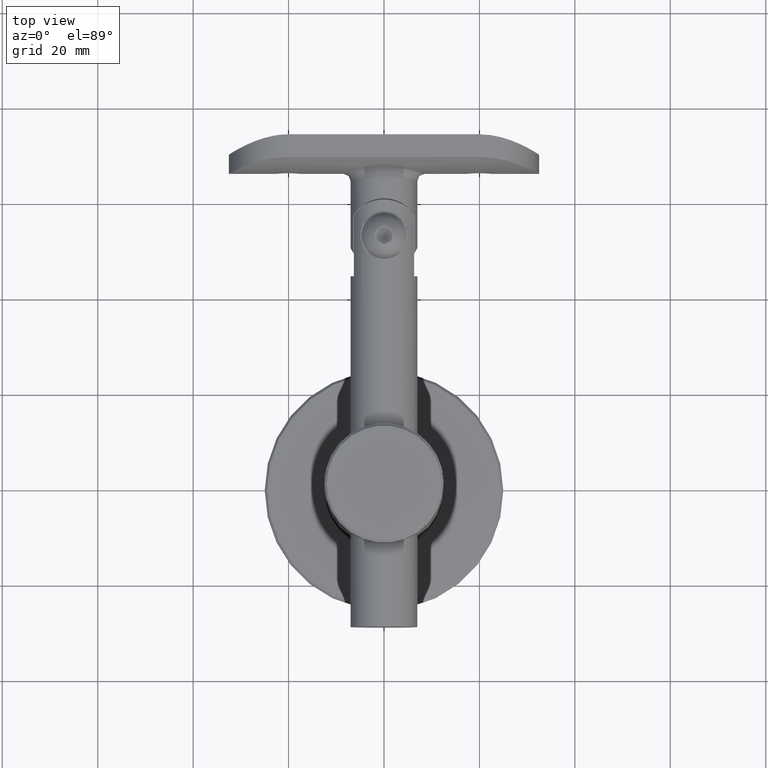
[diagram: clean part render]
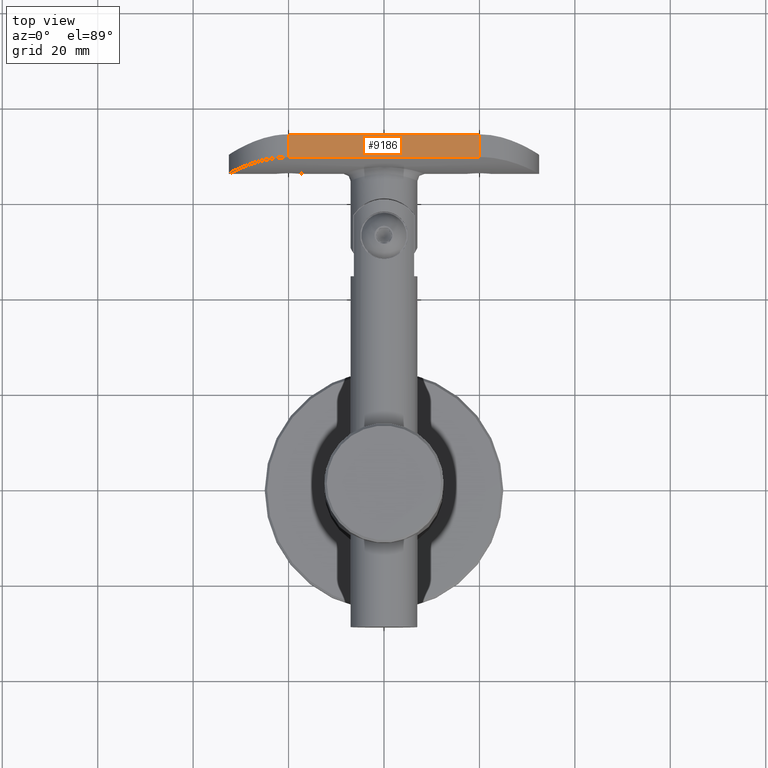
[diagram: same view with one face highlighted and labeled with its STEP entity id]
A machine part, top view. The second image highlights one B-rep face of the part: STEP entity #9186.
In plain terms, the highlighted planar face has unit normal (0, 0, -1).
Its self-contained STEP definition (entity closure, byte-faithful):
#157 = VERTEX_POINT ( 'NONE', #4855 ) ;
#330 = ORIENTED_EDGE ( 'NONE', *, *, #7535, .T. ) ;
#1176 = VERTEX_POINT ( 'NONE', #11783 ) ;
#1314 = FACE_OUTER_BOUND ( 'NONE', #5971, .T. ) ;
#2153 = AXIS2_PLACEMENT_3D ( 'NONE', #10550, #2408, #16895 ) ;
#2156 = CARTESIAN_POINT ( 'NONE',  ( 12.50000000000000000, 3.318729470161012600, 20.00000000000000000 ) ) ;
#2408 = DIRECTION ( 'NONE',  ( -1.000000000000000000, 3.645542167638208600E-016, 0.0000000000000000000 ) ) ;
#3313 = CARTESIAN_POINT ( 'NONE',  ( 12.50000000000000000, 3.318729470161015300, -20.00000000000000400 ) ) ;
#4322 = VECTOR ( 'NONE', #5766, 1000.000000000000000 ) ;
#4344 = LINE ( 'NONE', #12122, #18390 ) ;
#4855 = CARTESIAN_POINT ( 'NONE',  ( 12.50000000000000200, 8.077208171562679300, -20.00000000000000400 ) ) ;
#5074 = LINE ( 'NONE', #11844, #16121 ) ;
#5766 = DIRECTION ( 'NONE',  ( -3.645542167638208600E-016, -1.000000000000000000, -0.0000000000000000000 ) ) ;
#5971 = EDGE_LOOP ( 'NONE', ( #18522, #330, #8152, #14409 ) ) ;
#6304 = VERTEX_POINT ( 'NONE', #19432 ) ;
#6756 = CARTESIAN_POINT ( 'NONE',  ( 12.50000000000000000, 3.318729470161015300, 32.50000000000000000 ) ) ;
#7535 = EDGE_CURVE ( 'NONE', #12001, #157, #5074, .T. ) ;
#7798 = VECTOR ( 'NONE', #17979, 1000.000000000000000 ) ;
#8123 = EDGE_CURVE ( 'NONE', #1176, #157, #4344, .T. ) ;
#8152 = ORIENTED_EDGE ( 'NONE', *, *, #8123, .F. ) ;
#8461 = EDGE_CURVE ( 'NONE', #1176, #6304, #18133, .T. ) ;
#9186 = ADVANCED_FACE ( 'NONE', ( #1314 ), #18448, .F. ) ;
#10472 = EDGE_CURVE ( 'NONE', #6304, #12001, #14573, .T. ) ;
#10550 = CARTESIAN_POINT ( 'NONE',  ( 12.50000000000000000, 3.318729470161015300, 32.50000000000000000 ) ) ;
#11642 = DIRECTION ( 'NONE',  ( 3.645542167638208600E-016, 1.000000000000000000, -0.0000000000000000000 ) ) ;
#11783 = CARTESIAN_POINT ( 'NONE',  ( 12.50000000000000200, 8.077208171562679300, 20.00000000000000000 ) ) ;
#11844 = CARTESIAN_POINT ( 'NONE',  ( 12.50000000000000000, 3.318729470161015300, -20.00000000000000400 ) ) ;
#12001 = VERTEX_POINT ( 'NONE', #3313 ) ;
#12122 = CARTESIAN_POINT ( 'NONE',  ( 12.50000000000000200, 8.077208171562679300, 32.50000000000000000 ) ) ;
#14409 = ORIENTED_EDGE ( 'NONE', *, *, #8461, .T. ) ;
#14573 = LINE ( 'NONE', #6756, #7798 ) ;
#14859 = DIRECTION ( 'NONE',  ( -0.0000000000000000000, -0.0000000000000000000, -1.000000000000000000 ) ) ;
#16121 = VECTOR ( 'NONE', #11642, 1000.000000000000000 ) ;
#16895 = DIRECTION ( 'NONE',  ( -3.645542167638208600E-016, -1.000000000000000000, 0.0000000000000000000 ) ) ;
#17979 = DIRECTION ( 'NONE',  ( -0.0000000000000000000, -0.0000000000000000000, -1.000000000000000000 ) ) ;
#18133 = LINE ( 'NONE', #2156, #4322 ) ;
#18390 = VECTOR ( 'NONE', #14859, 1000.000000000000000 ) ;
#18448 = PLANE ( 'NONE',  #2153 ) ;
#18522 = ORIENTED_EDGE ( 'NONE', *, *, #10472, .T. ) ;
#19432 = CARTESIAN_POINT ( 'NONE',  ( 12.50000000000000000, 3.318729470161015300, 20.00000000000000000 ) ) ;